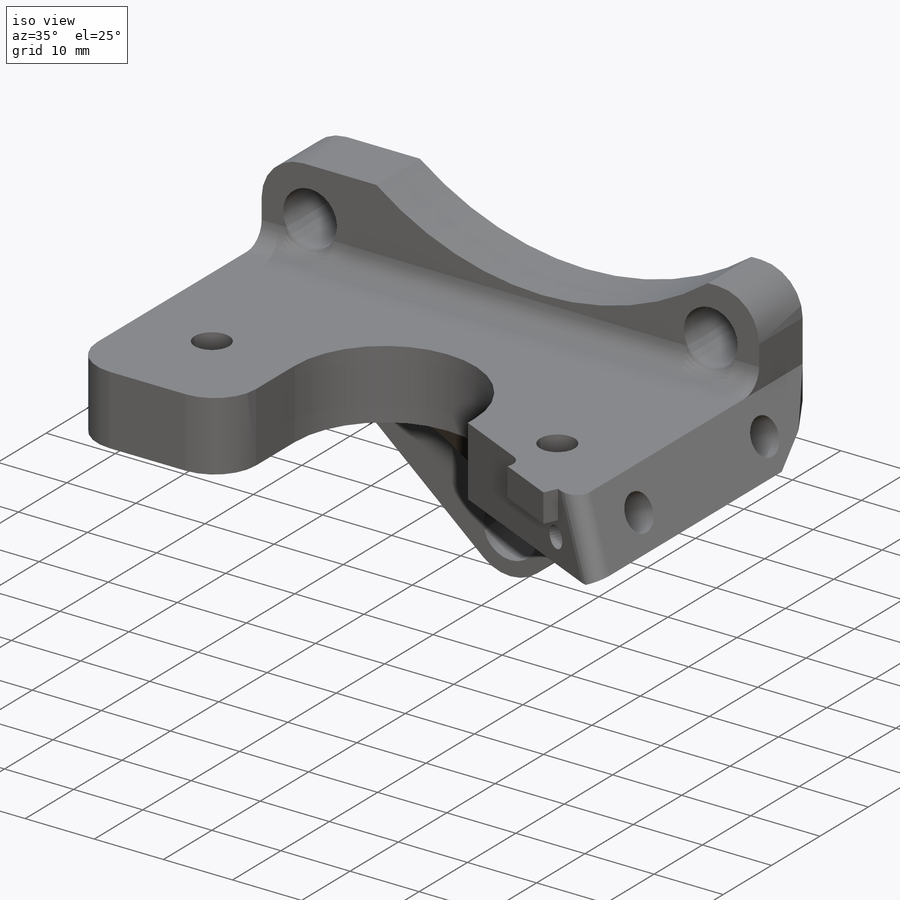
[diagram: iso view]
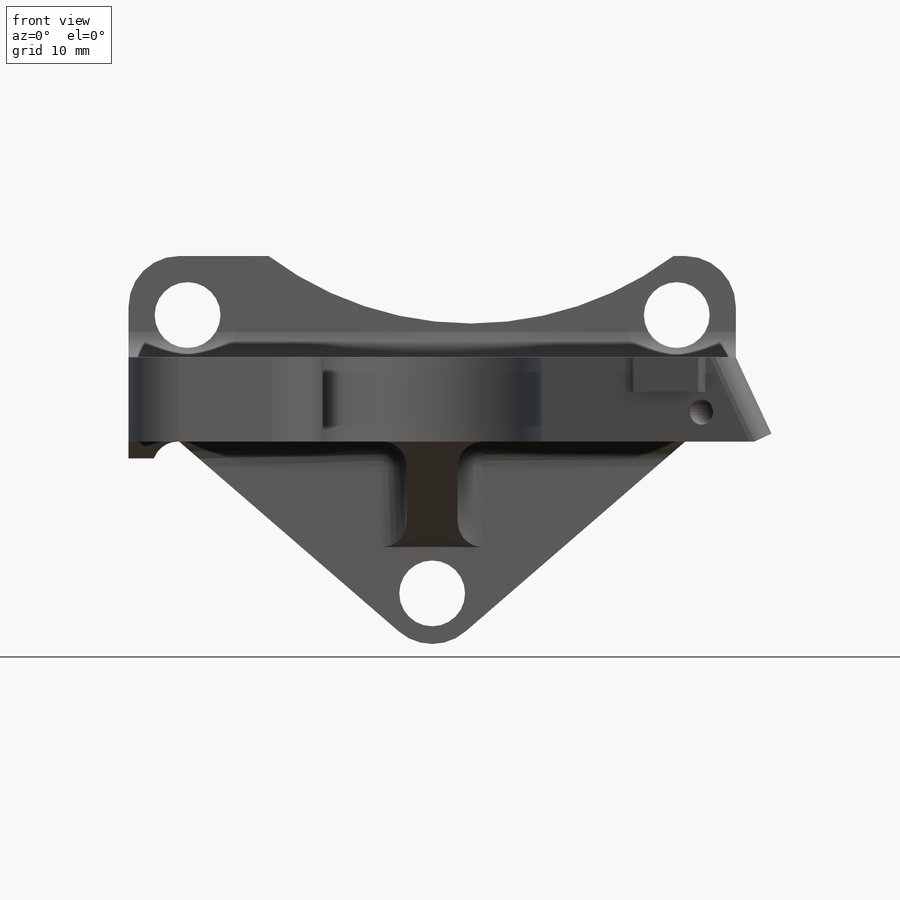
[diagram: front view]
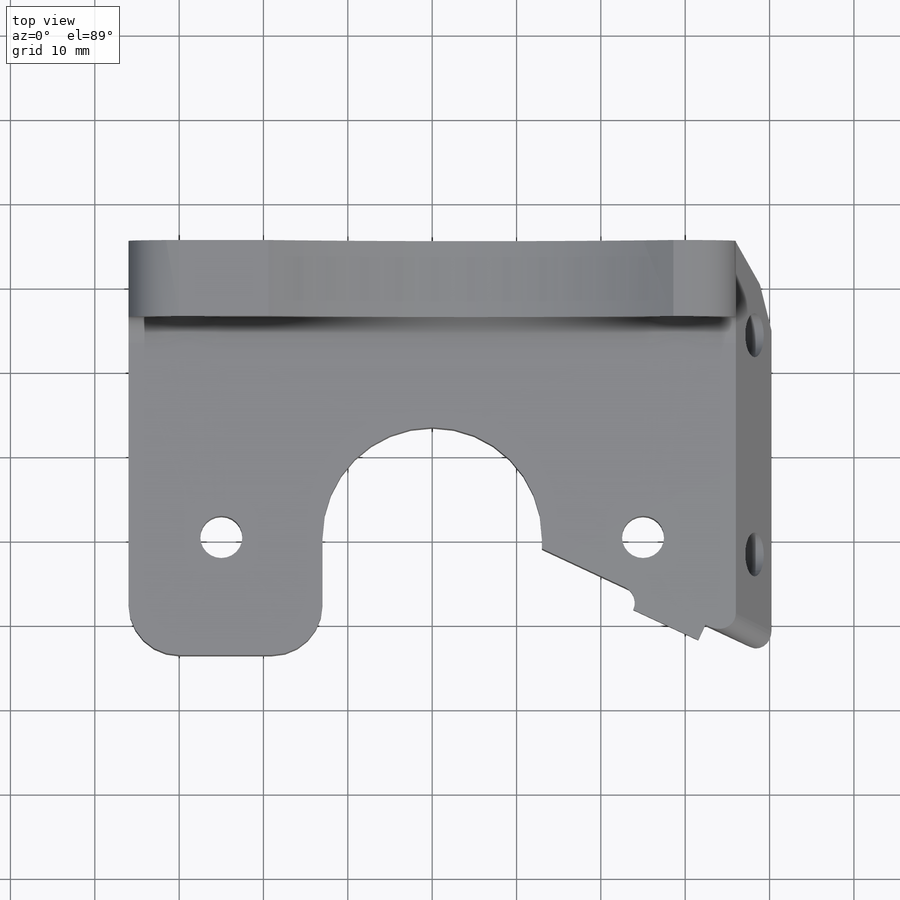
[diagram: top view]
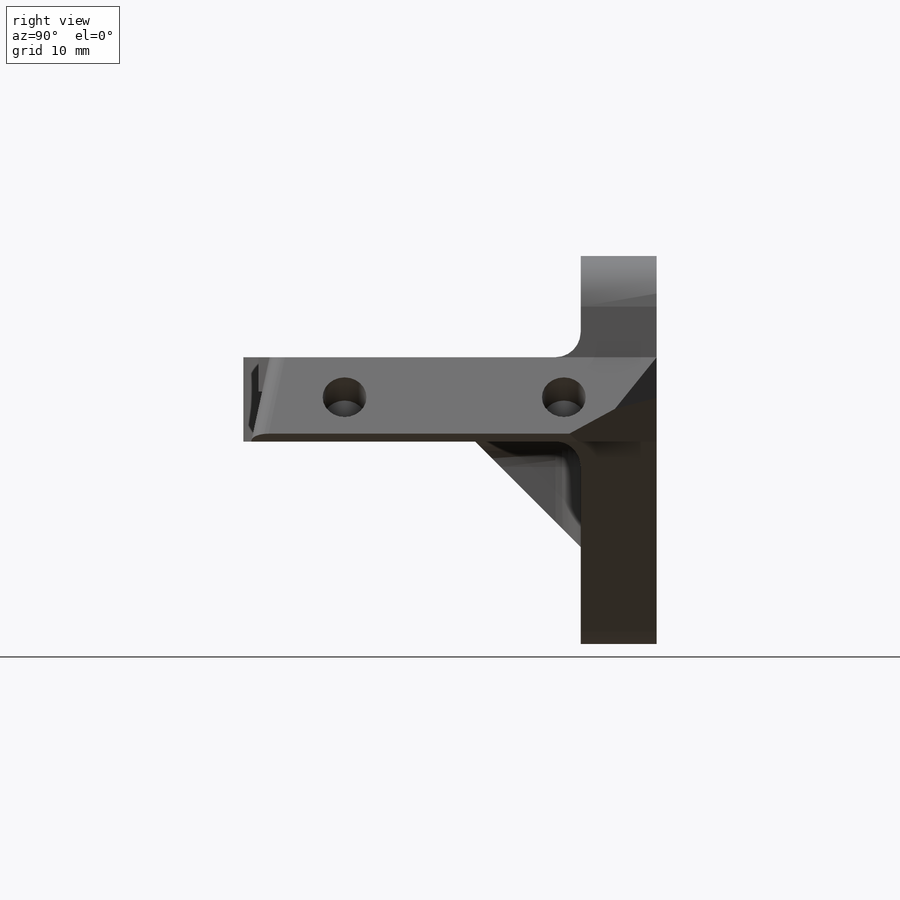
[diagram: right view]
SOLIDWORKS PART (.sldprt)
format: sldprt  version: not decoded by parser v0  size: 610,304 bytes
history: native  units: mm
features: sketch x19, cut_extrude x12, extrude x7, fillet x6, material x1, chamfer x1 (+11 scaffold rows collapsed)
feature tree (57):
  scaffold x11  (default folders/planes/origin — collapsed)
  material  "Material <not specified>"
  sketch  "Sketch1"  dims[D1=102.0mm D2=72.0mm]
  extrude  "Boss-Extrude1"  Depth=5mm
  sketch  "Sketch3"  dims[D1=8.0mm D2=29.0mm D3=49.0mm D4=10.0mm]
  extrude  "Boss-Extrude2"  [1 undecoded]
  sketch  "Sketch4"  dims[D2=5.0mm D3=26.0mm D1=50.0mm D4=14.0mm]
  cut_extrude  "Cut-Extrude1"  [1 undecoded]
  sketch  "Sketch5"  dims[D3=10.0mm D1=6.0mm D2=6.0mm]
  cut_extrude  "Cut-Extrude2"  Depth=10mm
  sketch  "Sketch11"  dims[c1.D1=11.2455mm c2.D1=~154.02479deg c3.D1=~12.509127mm c4.D1=25.0deg c4.D2=10.0mm]
  extrude  "Boss-Extrude5"  [1 undecoded]
  sketch  "Sketch12"  dims[c1.D3=8.0mm c1.D1=~17.279739mm c2.D1=2.0deg c2.D2=~44.733442mm c3.D2=12.0deg c4.D2=10.0mm c4.D4=~37.330949mm c5.D4=6.0deg]
  cut_extrude  "Cut-Extrude6"  Depth=20mm
  sketch  "Sketch13"  dims[D1=5.2mm D2=12.0mm D3=26.0mm D4=~4.761892mm]
  cut_extrude  "Cut-Extrude7"  Depth=6.5mm
  sketch  "Sketch15"  dims[c1.D1=16.5mm c1.D2=35.0mm c1.D3=1.0mm c1.D4=~19.745938mm c2.D4=25.0deg c2.D5=8.5mm c2.D6=24.0mm c3.D5=4.25mm]
  cut_extrude  "Cut-Extrude9"  Depth=20mm
  sketch  "Sketch16"  dims[D5=3.0mm D1=8.25mm D2=1.0mm D3=24.0mm D4=6.5mm]
  cut_extrude  "Cut-Extrude10"  Depth=8mm
  fillet  "Fillet4"  Radius=2mm
  sketch  "Sketch17"  dims[c1.D1=3.0mm c1.D2=3.0mm c2.D1=2.4mm c2.D2=0.5mm c2.D3=8.0mm c3.D1=2.4mm]
  extrude  "Boss-Extrude6"  Depth=2mm
  fillet  "Fillet5"  Radius=2mm
  sketch  "Sketch18"
  cut_extrude  "Cut-Extrude11"  [1 undecoded]
  sketch  "Sketch20"
  cut_extrude  "Cut-Extrude12"  [1 undecoded]
  sketch  "Sketch19"  dims[c1.D2=6.0mm c1.D4=6.0mm c1.D1=12.0mm c1.D3=10.0mm c1.D5=12.0mm c2.D3=18.0mm c2.D5=60.0mm]
  extrude  "Boss-Extrude11"  Depth=9mm
  sketch  "Sketch21"  dims[D1=7.8mm]
  cut_extrude  "Cut-Extrude13"  [1 undecoded]
  sketch  "Sketch22"  dims[D1=80.0mm D2=22.0mm D3=4.6mm]
  cut_extrude  "Cut-Extrude14"  [1 undecoded]
  fillet  "Fillet6"  Radius=3mm
  fillet  "Fillet7"  Radius=6mm
  sketch  "Sketch23"  dims[D1=17.0mm D2=8.0mm D3=15.0mm D4=15.0mm]
  cut_extrude  "Cut-Extrude15"  Depth=5mm
  sketch  "Sketch25"  dims[D1=12.5mm D2=12.5mm]
  extrude  "Boss-Extrude12"  Depth=6mm
  fillet  "Fillet8"  Radius=3mm
  sketch  "Sketch27"  dims[c1.D1=2.0mm c1.D2=10.0mm c1.D3=~15.136392mm c2.D3=30.0deg]
  extrude  "Boss-Extrude13"  Depth=3mm
  fillet  "Fillet9"  Radius=3mm
  sketch  "Sketch28"
  cut_extrude  "Cut-Extrude16"  Depth=15mm
  chamfer  "Chamfer1"  Distance=0.8mm Angle=45deg
decode coverage: 35 of 45 modeling features carry decoded parameters
note: ~ marks probable driven/reference dimensions
note: 7 parameter values undecoded
summary: no parameter record found for 7 features
note: suppression state not decoded; provenance and decode notes live in map.json
